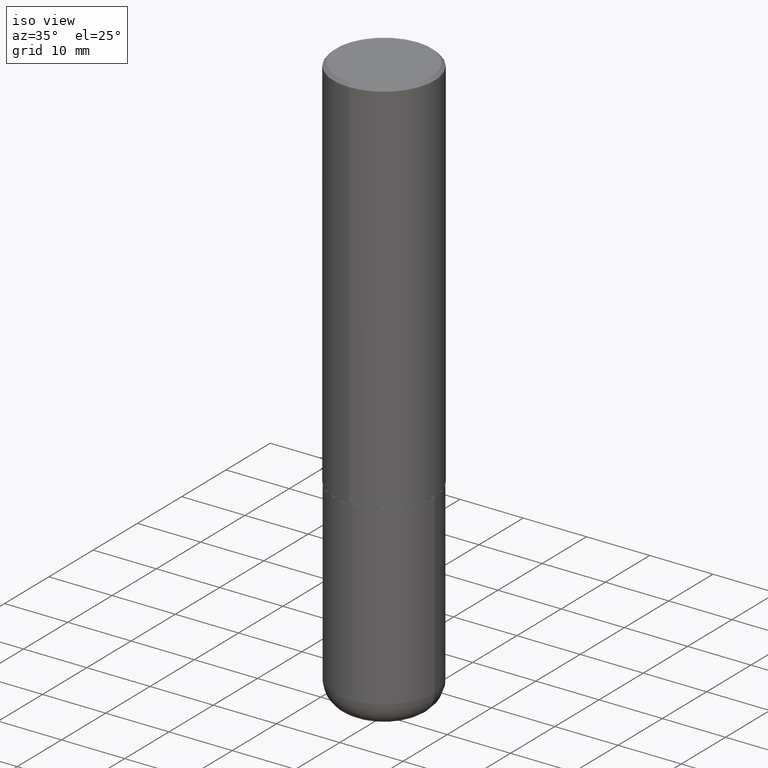
[diagram: clean part render]
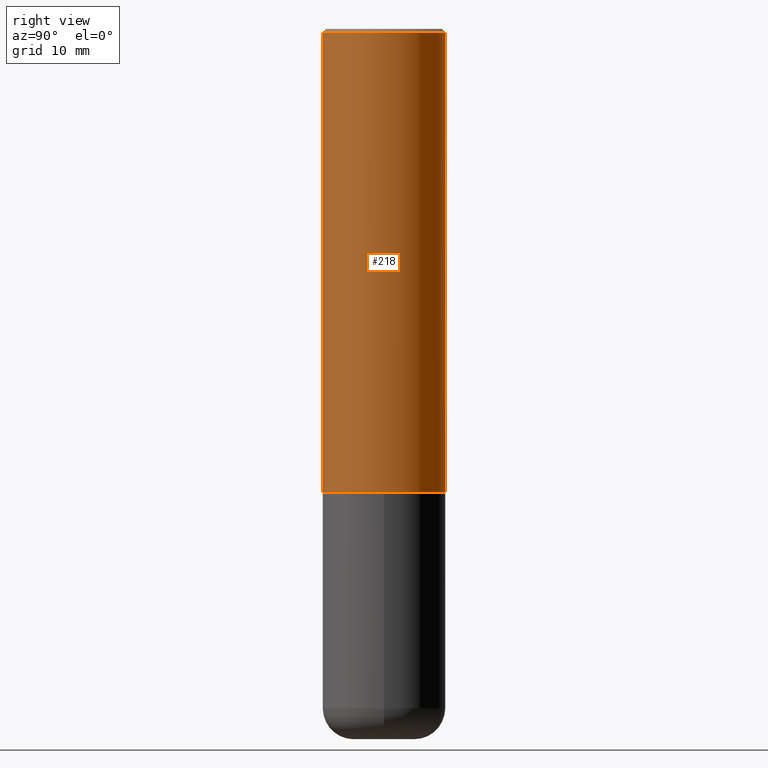
[diagram: tour spotlight — one face highlighted and labeled with its STEP entity id]
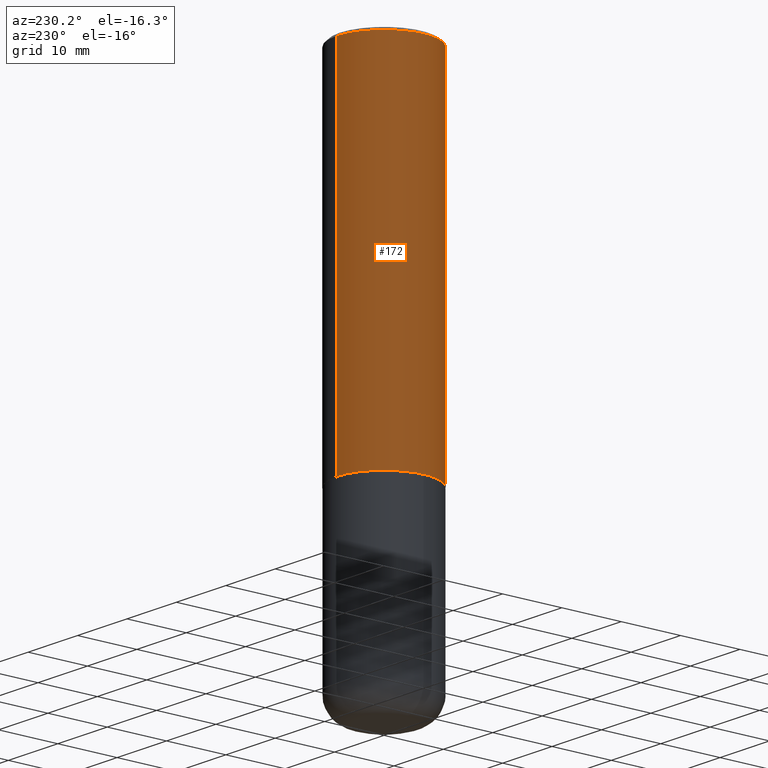
[diagram: tour spotlight — one face highlighted and labeled with its STEP entity id]
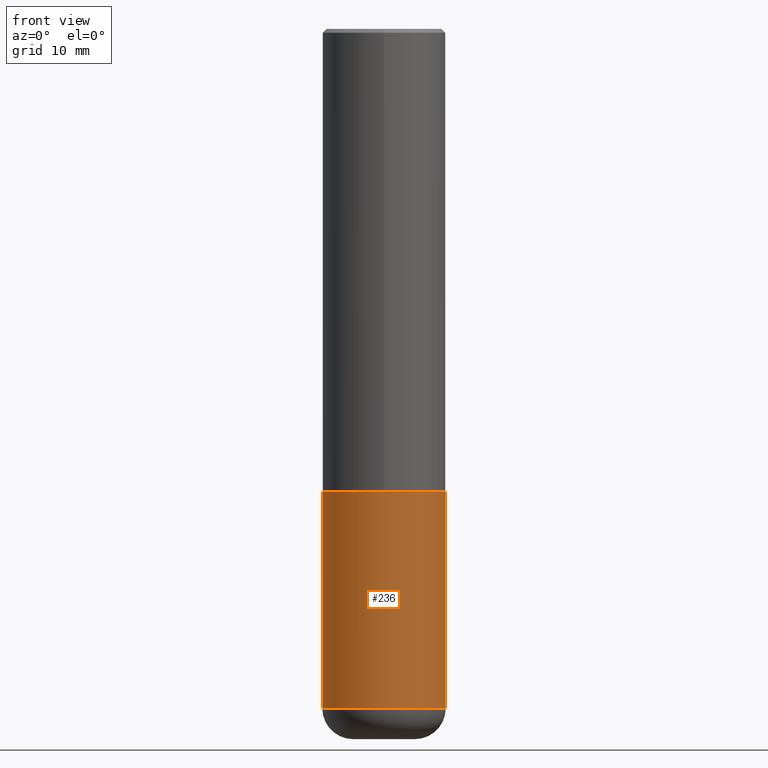
[diagram: tour spotlight — one face highlighted and labeled with its STEP entity id]
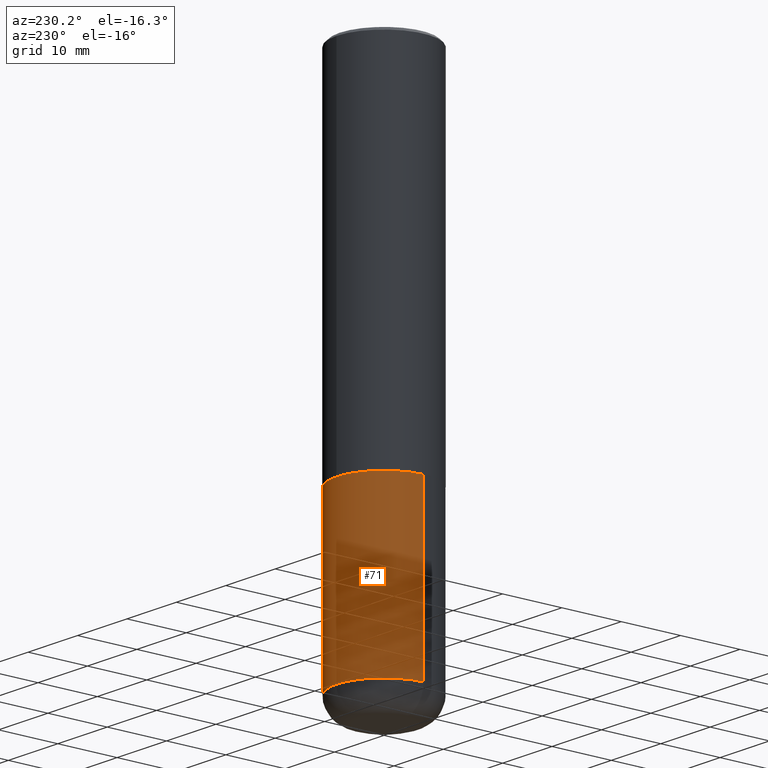
[diagram: tour spotlight — one face highlighted and labeled with its STEP entity id]
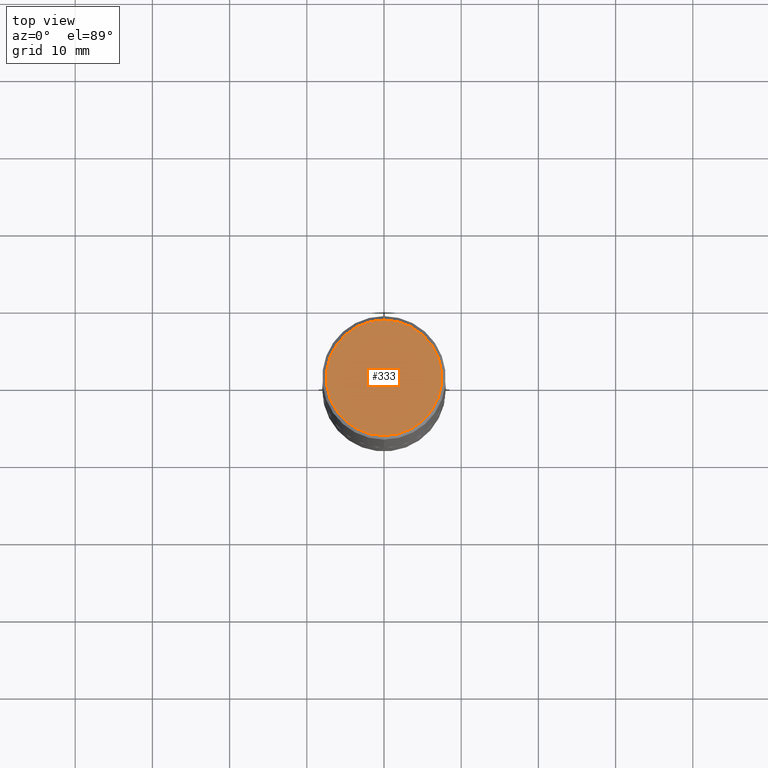
[diagram: tour spotlight — one face highlighted and labeled with its STEP entity id]
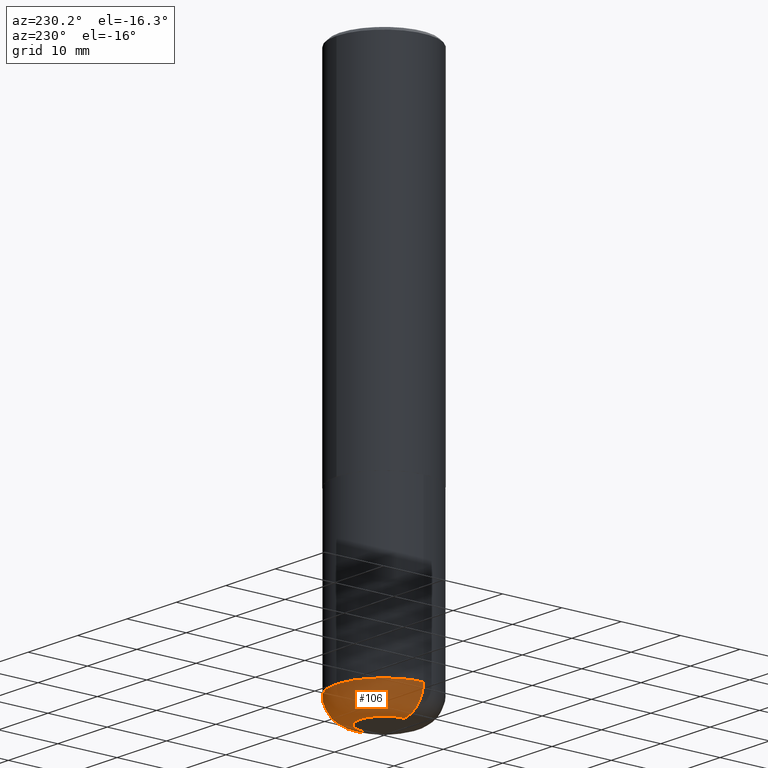
[diagram: tour spotlight — one face highlighted and labeled with its STEP entity id]
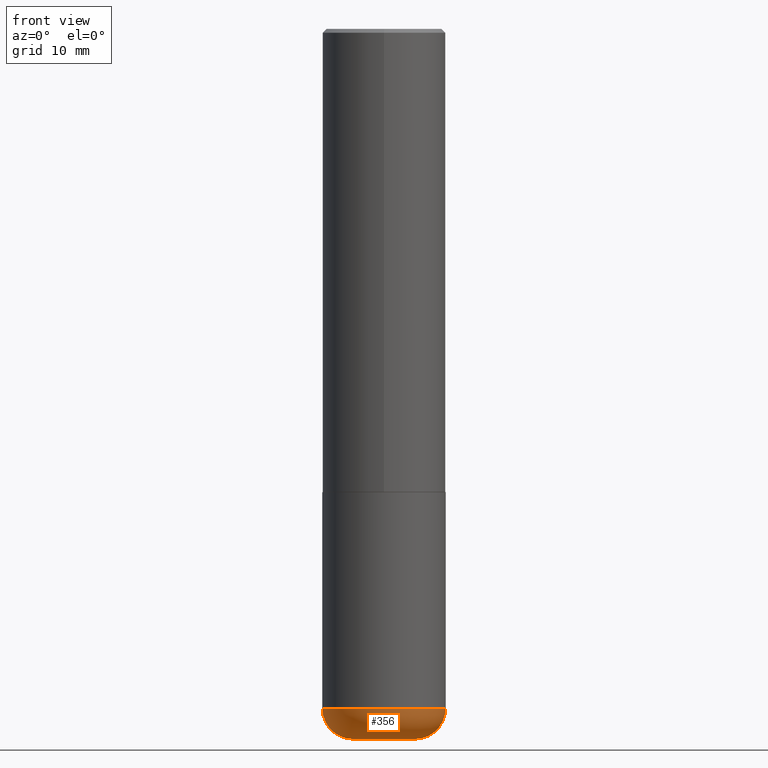
[diagram: tour spotlight — one face highlighted and labeled with its STEP entity id]
A machine part: a face-by-face anatomy tour. The part has 14 B-rep faces; the first image is the clean iso view, then the 7 largest visible faces are spotlighted one at a time (largest first), each with its STEP entity span.

Face 1 — right view, entity #218. In plain terms, the highlighted cylindrical surface (partial cylindrical patch) has radius 7.9997 mm, axis along (-0, 0, 1).
Definition (entity closure, byte-faithful):
#7 = LINE ( 'NONE', #360, #264 ) ;
#39 = CARTESIAN_POINT ( 'NONE',  ( 4.893464128848368385E-31, -6.979344562289319109E-17, -0.02000000000000006981 ) ) ;
#51 = VERTEX_POINT ( 'NONE', #380 ) ;
#52 = EDGE_CURVE ( 'NONE', #345, #81, #159, .T. ) ;
#61 = EDGE_CURVE ( 'NONE', #81, #200, #331, .T. ) ;
#64 = CARTESIAN_POINT ( 'NONE',  ( 0.000000000000000000, 0.000000000000000000, 0.000000000000000000 ) ) ;
#70 = DIRECTION ( 'NONE',  ( -6.982962677686265922E-15, -1.000000000000000000, 3.483117034309591132E-15 ) ) ;
#75 = DIRECTION ( 'NONE',  ( -2.446732064424175452E-29, 3.489672281144648363E-15, 1.000000000000000000 ) ) ;
#81 = VERTEX_POINT ( 'NONE', #291 ) ;
#98 = DIRECTION ( 'NONE',  ( -6.982962677686264344E-15, -1.000000000000000000, 3.489672281144647968E-15 ) ) ;
#115 = ORIENTED_EDGE ( 'NONE', *, *, #61, .F. ) ;
#119 = AXIS2_PLACEMENT_3D ( 'NONE', #39, #221, #70 ) ;
#149 = ORIENTED_EDGE ( 'NONE', *, *, #299, .T. ) ;
#159 = LINE ( 'NONE', #391, #365 ) ;
#166 = DIRECTION ( 'NONE',  ( -2.446732064424175452E-29, 3.489672281144647968E-15, 1.000000000000000000 ) ) ;
#196 = AXIS2_PLACEMENT_3D ( 'NONE', #64, #290, #98 ) ;
#199 = DIRECTION ( 'NONE',  ( -6.982962677686265922E-15, -1.000000000000000000, 3.469564049740290009E-15 ) ) ;
#200 = VERTEX_POINT ( 'NONE', #217 ) ;
#203 = CARTESIAN_POINT ( 'NONE',  ( 5.777223750518362448E-29, -8.239814190238740974E-15, -2.361199999999999743 ) ) ;
#217 = CARTESIAN_POINT ( 'NONE',  ( 2.199284095337289871E-15, 0.3149499999999999522, -0.02000000000000116615 ) ) ;
#218 = ADVANCED_FACE ( 'NONE', ( #349 ), #350, .T. ) ;
#221 = DIRECTION ( 'NONE',  ( -2.446732064424175452E-29, 3.489672281144647968E-15, 1.000000000000000000 ) ) ;
#223 = CARTESIAN_POINT ( 'NONE',  ( -2.199284095337233467E-15, -0.3149500000000085564, -2.361199999999998411 ) ) ;
#258 = DIRECTION ( 'NONE',  ( -2.446732064424175452E-29, 3.489672281144648363E-15, 1.000000000000000000 ) ) ;
#264 = VECTOR ( 'NONE', #75, 39.37007874015748143 ) ;
#290 = DIRECTION ( 'NONE',  ( -2.446732064424175452E-29, 3.489672281144647968E-15, 1.000000000000000000 ) ) ;
#291 = CARTESIAN_POINT ( 'NONE',  ( -2.160713844398143363E-15, -0.3149500000000000632, -0.01999999999999896999 ) ) ;
#298 = AXIS2_PLACEMENT_3D ( 'NONE', #203, #166, #199 ) ;
#299 = EDGE_CURVE ( 'NONE', #345, #51, #404, .T. ) ;
#331 = CIRCLE ( 'NONE', #119, 0.3149500000000000077 ) ;
#345 = VERTEX_POINT ( 'NONE', #223 ) ;
#349 = FACE_OUTER_BOUND ( 'NONE', #387, .T. ) ;
#350 = CYLINDRICAL_SURFACE ( 'NONE', #196, 0.3149500000000001743 ) ;
#354 = ORIENTED_EDGE ( 'NONE', *, *, #381, .T. ) ;
#360 = CARTESIAN_POINT ( 'NONE',  ( 2.237854346276435985E-15, 0.3149500000000001743, -1.099072284946507453E-15 ) ) ;
#365 = VECTOR ( 'NONE', #258, 39.37007874015748143 ) ;
#380 = CARTESIAN_POINT ( 'NONE',  ( 2.237854346276465567E-15, 0.3149499999999920141, -2.361200000000000632 ) ) ;
#381 = EDGE_CURVE ( 'NONE', #51, #200, #7, .T. ) ;
#387 = EDGE_LOOP ( 'NONE', ( #149, #354, #115, #411 ) ) ;
#391 = CARTESIAN_POINT ( 'NONE',  ( -2.199284095337290265E-15, -0.3149500000000001743, 1.099072284946507453E-15 ) ) ;
#404 = CIRCLE ( 'NONE', #298, 0.3149500000000002853 ) ;
#411 = ORIENTED_EDGE ( 'NONE', *, *, #52, .F. ) ;

Face 2 — auxiliary view, entity #172. In plain terms, the highlighted cylindrical surface (partial cylindrical patch) has radius 7.9997 mm, axis along (-0, 0, 1).
Definition (entity closure, byte-faithful):
#7 = LINE ( 'NONE', #360, #264 ) ;
#17 = DIRECTION ( 'NONE',  ( -6.982962677686265922E-15, -1.000000000000000000, 3.469564049740290009E-15 ) ) ;
#32 = DIRECTION ( 'NONE',  ( -6.982962677686264344E-15, -1.000000000000000000, 3.489672281144647968E-15 ) ) ;
#37 = EDGE_CURVE ( 'NONE', #51, #345, #66, .T. ) ;
#51 = VERTEX_POINT ( 'NONE', #380 ) ;
#52 = EDGE_CURVE ( 'NONE', #345, #81, #159, .T. ) ;
#62 = FACE_OUTER_BOUND ( 'NONE', #368, .T. ) ;
#66 = CIRCLE ( 'NONE', #305, 0.3149500000000002853 ) ;
#69 = ORIENTED_EDGE ( 'NONE', *, *, #381, .F. ) ;
#75 = DIRECTION ( 'NONE',  ( -2.446732064424175452E-29, 3.489672281144648363E-15, 1.000000000000000000 ) ) ;
#76 = DIRECTION ( 'NONE',  ( -6.982962677686265922E-15, -1.000000000000000000, 3.483117034309591132E-15 ) ) ;
#81 = VERTEX_POINT ( 'NONE', #291 ) ;
#133 = AXIS2_PLACEMENT_3D ( 'NONE', #316, #383, #32 ) ;
#137 = CIRCLE ( 'NONE', #340, 0.3149500000000000077 ) ;
#139 = DIRECTION ( 'NONE',  ( -2.446732064424175452E-29, 3.489672281144647968E-15, 1.000000000000000000 ) ) ;
#159 = LINE ( 'NONE', #391, #365 ) ;
#172 = ADVANCED_FACE ( 'NONE', ( #62 ), #190, .T. ) ;
#187 = ORIENTED_EDGE ( 'NONE', *, *, #245, .F. ) ;
#190 = CYLINDRICAL_SURFACE ( 'NONE', #133, 0.3149500000000001743 ) ;
#200 = VERTEX_POINT ( 'NONE', #217 ) ;
#210 = ORIENTED_EDGE ( 'NONE', *, *, #52, .T. ) ;
#217 = CARTESIAN_POINT ( 'NONE',  ( 2.199284095337289871E-15, 0.3149499999999999522, -0.02000000000000116615 ) ) ;
#223 = CARTESIAN_POINT ( 'NONE',  ( -2.199284095337233467E-15, -0.3149500000000085564, -2.361199999999998411 ) ) ;
#228 = ORIENTED_EDGE ( 'NONE', *, *, #37, .T. ) ;
#245 = EDGE_CURVE ( 'NONE', #200, #81, #137, .T. ) ;
#258 = DIRECTION ( 'NONE',  ( -2.446732064424175452E-29, 3.489672281144648363E-15, 1.000000000000000000 ) ) ;
#264 = VECTOR ( 'NONE', #75, 39.37007874015748143 ) ;
#291 = CARTESIAN_POINT ( 'NONE',  ( -2.160713844398143363E-15, -0.3149500000000000632, -0.01999999999999896999 ) ) ;
#304 = DIRECTION ( 'NONE',  ( -2.446732064424175452E-29, 3.489672281144647968E-15, 1.000000000000000000 ) ) ;
#305 = AXIS2_PLACEMENT_3D ( 'NONE', #312, #304, #17 ) ;
#312 = CARTESIAN_POINT ( 'NONE',  ( 5.777223750518362448E-29, -8.239814190238740974E-15, -2.361199999999999743 ) ) ;
#316 = CARTESIAN_POINT ( 'NONE',  ( 0.000000000000000000, 0.000000000000000000, 0.000000000000000000 ) ) ;
#327 = CARTESIAN_POINT ( 'NONE',  ( 4.893464128848368385E-31, -6.979344562289319109E-17, -0.02000000000000006981 ) ) ;
#340 = AXIS2_PLACEMENT_3D ( 'NONE', #327, #139, #76 ) ;
#345 = VERTEX_POINT ( 'NONE', #223 ) ;
#360 = CARTESIAN_POINT ( 'NONE',  ( 2.237854346276435985E-15, 0.3149500000000001743, -1.099072284946507453E-15 ) ) ;
#365 = VECTOR ( 'NONE', #258, 39.37007874015748143 ) ;
#368 = EDGE_LOOP ( 'NONE', ( #69, #228, #210, #187 ) ) ;
#380 = CARTESIAN_POINT ( 'NONE',  ( 2.237854346276465567E-15, 0.3149499999999920141, -2.361200000000000632 ) ) ;
#381 = EDGE_CURVE ( 'NONE', #51, #200, #7, .T. ) ;
#383 = DIRECTION ( 'NONE',  ( -2.446732064424175452E-29, 3.489672281144647968E-15, 1.000000000000000000 ) ) ;
#391 = CARTESIAN_POINT ( 'NONE',  ( -2.199284095337290265E-15, -0.3149500000000001743, 1.099072284946507453E-15 ) ) ;

Face 3 — front view, entity #236. In plain terms, the highlighted cylindrical surface (partial cylindrical patch) has radius 7.9997 mm, axis along (-0, 0, 1).
Definition (entity closure, byte-faithful):
#10 = CYLINDRICAL_SURFACE ( 'NONE', #314, 0.3149500000000000077 ) ;
#11 = VERTEX_POINT ( 'NONE', #57 ) ;
#41 = DIRECTION ( 'NONE',  ( -2.445468806185136597E-29, 3.491481338843145583E-15, 1.000000000000000000 ) ) ;
#49 = CARTESIAN_POINT ( 'NONE',  ( 0.3149500000000000077, -2.199284095337289871E-15, 1.535751875536930130E-29 ) ) ;
#57 = CARTESIAN_POINT ( 'NONE',  ( 0.3149500000000002298, -1.429552119375936694E-14, -3.464499999999999691 ) ) ;
#67 = AXIS2_PLACEMENT_3D ( 'NONE', #253, #96, #216 ) ;
#80 = DIRECTION ( 'NONE',  ( -2.445468806185136877E-29, 3.491481338843145188E-15, 1.000000000000000000 ) ) ;
#96 = DIRECTION ( 'NONE',  ( -2.445468806185136597E-29, 3.491481338843145583E-15, 1.000000000000000000 ) ) ;
#109 = CARTESIAN_POINT ( 'NONE',  ( -0.3149500000000002298, -9.858382752145641082E-15, -3.464499999999999691 ) ) ;
#120 = CARTESIAN_POINT ( 'NONE',  ( -0.3149500000000000077, -7.934052812242242362E-15, -2.362199999999999633 ) ) ;
#123 = CARTESIAN_POINT ( 'NONE',  ( 0.3149500000000000077, -1.044686131395256792E-14, -2.362199999999999633 ) ) ;
#134 = CARTESIAN_POINT ( 'NONE',  ( -0.3149500000000000077, 2.237854346276435590E-15, -1.549218606675782676E-29 ) ) ;
#135 = CARTESIAN_POINT ( 'NONE',  ( 0.000000000000000000, 0.000000000000000000, 0.000000000000000000 ) ) ;
#136 = CARTESIAN_POINT ( 'NONE',  ( 8.472326679028403758E-29, -1.209623709842207707E-14, -3.464499999999999691 ) ) ;
#138 = LINE ( 'NONE', #49, #292 ) ;
#145 = VERTEX_POINT ( 'NONE', #123 ) ;
#158 = ORIENTED_EDGE ( 'NONE', *, *, #324, .T. ) ;
#194 = DIRECTION ( 'NONE',  ( -2.445468806185136597E-29, 3.491481338843145583E-15, 1.000000000000000000 ) ) ;
#197 = EDGE_CURVE ( 'NONE', #413, #145, #259, .T. ) ;
#216 = DIRECTION ( 'NONE',  ( 1.000000000000000000, -6.982962677686266711E-15, 0.000000000000000000 ) ) ;
#222 = LINE ( 'NONE', #134, #366 ) ;
#234 = EDGE_LOOP ( 'NONE', ( #277, #254, #158, #281 ) ) ;
#236 = ADVANCED_FACE ( 'NONE', ( #319 ), #10, .T. ) ;
#252 = EDGE_CURVE ( 'NONE', #339, #413, #222, .T. ) ;
#253 = CARTESIAN_POINT ( 'NONE',  ( 5.776686413970529753E-29, -8.247577218615278049E-15, -2.362199999999999633 ) ) ;
#254 = ORIENTED_EDGE ( 'NONE', *, *, #318, .T. ) ;
#259 = CIRCLE ( 'NONE', #67, 0.3149500000000000077 ) ;
#265 = DIRECTION ( 'NONE',  ( -2.445468806185136877E-29, 3.491481338843145188E-15, 1.000000000000000000 ) ) ;
#270 = AXIS2_PLACEMENT_3D ( 'NONE', #136, #41, #332 ) ;
#277 = ORIENTED_EDGE ( 'NONE', *, *, #252, .F. ) ;
#281 = ORIENTED_EDGE ( 'NONE', *, *, #197, .F. ) ;
#292 = VECTOR ( 'NONE', #265, 39.37007874015748143 ) ;
#314 = AXIS2_PLACEMENT_3D ( 'NONE', #135, #194, #329 ) ;
#318 = EDGE_CURVE ( 'NONE', #339, #11, #347, .T. ) ;
#319 = FACE_OUTER_BOUND ( 'NONE', #234, .T. ) ;
#324 = EDGE_CURVE ( 'NONE', #11, #145, #138, .T. ) ;
#329 = DIRECTION ( 'NONE',  ( 1.000000000000000000, -6.982962677686266711E-15, 4.876176775795936353E-29 ) ) ;
#332 = DIRECTION ( 'NONE',  ( 1.000000000000000000, -6.982962677686263555E-15, 0.000000000000000000 ) ) ;
#339 = VERTEX_POINT ( 'NONE', #109 ) ;
#347 = CIRCLE ( 'NONE', #270, 0.3149500000000000077 ) ;
#366 = VECTOR ( 'NONE', #80, 39.37007874015748143 ) ;
#413 = VERTEX_POINT ( 'NONE', #120 ) ;

Face 4 — auxiliary view, entity #71. In plain terms, the highlighted cylindrical surface (partial cylindrical patch) has radius 7.9997 mm, axis along (-0, 0, 1).
Definition (entity closure, byte-faithful):
#11 = VERTEX_POINT ( 'NONE', #57 ) ;
#16 = CIRCLE ( 'NONE', #168, 0.3149500000000000077 ) ;
#40 = CARTESIAN_POINT ( 'NONE',  ( 0.000000000000000000, 0.000000000000000000, 0.000000000000000000 ) ) ;
#43 = DIRECTION ( 'NONE',  ( 1.000000000000000000, -6.982962677686266711E-15, 0.000000000000000000 ) ) ;
#49 = CARTESIAN_POINT ( 'NONE',  ( 0.3149500000000000077, -2.199284095337289871E-15, 1.535751875536930130E-29 ) ) ;
#57 = CARTESIAN_POINT ( 'NONE',  ( 0.3149500000000002298, -1.429552119375936694E-14, -3.464499999999999691 ) ) ;
#71 = ADVANCED_FACE ( 'NONE', ( #193 ), #130, .T. ) ;
#80 = DIRECTION ( 'NONE',  ( -2.445468806185136877E-29, 3.491481338843145188E-15, 1.000000000000000000 ) ) ;
#109 = CARTESIAN_POINT ( 'NONE',  ( -0.3149500000000002298, -9.858382752145641082E-15, -3.464499999999999691 ) ) ;
#120 = CARTESIAN_POINT ( 'NONE',  ( -0.3149500000000000077, -7.934052812242242362E-15, -2.362199999999999633 ) ) ;
#123 = CARTESIAN_POINT ( 'NONE',  ( 0.3149500000000000077, -1.044686131395256792E-14, -2.362199999999999633 ) ) ;
#125 = AXIS2_PLACEMENT_3D ( 'NONE', #40, #348, #293 ) ;
#130 = CYLINDRICAL_SURFACE ( 'NONE', #125, 0.3149500000000000077 ) ;
#134 = CARTESIAN_POINT ( 'NONE',  ( -0.3149500000000000077, 2.237854346276435590E-15, -1.549218606675782676E-29 ) ) ;
#138 = LINE ( 'NONE', #49, #292 ) ;
#145 = VERTEX_POINT ( 'NONE', #123 ) ;
#168 = AXIS2_PLACEMENT_3D ( 'NONE', #262, #393, #43 ) ;
#177 = CARTESIAN_POINT ( 'NONE',  ( 8.472326679028403758E-29, -1.209623709842207707E-14, -3.464499999999999691 ) ) ;
#182 = DIRECTION ( 'NONE',  ( 1.000000000000000000, -6.982962677686263555E-15, 0.000000000000000000 ) ) ;
#193 = FACE_OUTER_BOUND ( 'NONE', #212, .T. ) ;
#212 = EDGE_LOOP ( 'NONE', ( #346, #315, #401, #379 ) ) ;
#220 = AXIS2_PLACEMENT_3D ( 'NONE', #177, #274, #182 ) ;
#222 = LINE ( 'NONE', #134, #366 ) ;
#252 = EDGE_CURVE ( 'NONE', #339, #413, #222, .T. ) ;
#262 = CARTESIAN_POINT ( 'NONE',  ( 5.776686413970529753E-29, -8.247577218615278049E-15, -2.362199999999999633 ) ) ;
#265 = DIRECTION ( 'NONE',  ( -2.445468806185136877E-29, 3.491481338843145188E-15, 1.000000000000000000 ) ) ;
#274 = DIRECTION ( 'NONE',  ( -2.445468806185136597E-29, 3.491481338843145583E-15, 1.000000000000000000 ) ) ;
#292 = VECTOR ( 'NONE', #265, 39.37007874015748143 ) ;
#293 = DIRECTION ( 'NONE',  ( 1.000000000000000000, -6.982962677686266711E-15, 4.876176775795936353E-29 ) ) ;
#302 = EDGE_CURVE ( 'NONE', #145, #413, #16, .T. ) ;
#315 = ORIENTED_EDGE ( 'NONE', *, *, #252, .T. ) ;
#324 = EDGE_CURVE ( 'NONE', #11, #145, #138, .T. ) ;
#339 = VERTEX_POINT ( 'NONE', #109 ) ;
#346 = ORIENTED_EDGE ( 'NONE', *, *, #412, .T. ) ;
#348 = DIRECTION ( 'NONE',  ( -2.445468806185136597E-29, 3.491481338843145583E-15, 1.000000000000000000 ) ) ;
#359 = CIRCLE ( 'NONE', #220, 0.3149500000000000077 ) ;
#366 = VECTOR ( 'NONE', #80, 39.37007874015748143 ) ;
#379 = ORIENTED_EDGE ( 'NONE', *, *, #324, .F. ) ;
#393 = DIRECTION ( 'NONE',  ( -2.445468806185136597E-29, 3.491481338843145583E-15, 1.000000000000000000 ) ) ;
#401 = ORIENTED_EDGE ( 'NONE', *, *, #302, .F. ) ;
#412 = EDGE_CURVE ( 'NONE', #11, #339, #359, .T. ) ;
#413 = VERTEX_POINT ( 'NONE', #120 ) ;

Face 5 — top view, entity #333. In plain terms, the highlighted planar face has unit normal (0, -0, -1).
Definition (entity closure, byte-faithful):
#5 = CARTESIAN_POINT ( 'NONE',  ( -2.092108864420428426E-15, -0.2949500000000001565, 8.537362456613256939E-16 ) ) ;
#20 = DIRECTION ( 'NONE',  ( -2.446732064424175452E-29, 3.489672281144647968E-15, 1.000000000000000000 ) ) ;
#29 = DIRECTION ( 'NONE',  ( -6.982962677686265922E-15, -1.000000000000000000, 3.489672281144648363E-15 ) ) ;
#31 = EDGE_CURVE ( 'NONE', #241, #165, #238, .T. ) ;
#48 = EDGE_CURVE ( 'NONE', #165, #241, #99, .T. ) ;
#54 = CARTESIAN_POINT ( 'NONE',  ( 4.295056925857058757E-45, -6.125861232635271610E-31, -1.755425936622887402E-16 ) ) ;
#73 = AXIS2_PLACEMENT_3D ( 'NONE', #54, #206, #29 ) ;
#78 = FACE_OUTER_BOUND ( 'NONE', #174, .T. ) ;
#99 = CIRCLE ( 'NONE', #297, 0.2949500000000001565 ) ;
#100 = ORIENTED_EDGE ( 'NONE', *, *, #31, .T. ) ;
#107 = DIRECTION ( 'NONE',  ( 6.982962677686265922E-15, 1.000000000000000000, -3.489672281144648363E-15 ) ) ;
#161 = CARTESIAN_POINT ( 'NONE',  ( 2.129454468560427362E-15, 0.2949500000000001565, -1.204821432985903076E-15 ) ) ;
#165 = VERTEX_POINT ( 'NONE', #161 ) ;
#174 = EDGE_LOOP ( 'NONE', ( #321, #100 ) ) ;
#178 = CARTESIAN_POINT ( 'NONE',  ( 4.295056925857058757E-45, -6.125861232635271610E-31, -1.755425936622887402E-16 ) ) ;
#206 = DIRECTION ( 'NONE',  ( -2.446732064424175452E-29, 3.489672281144647968E-15, 1.000000000000000000 ) ) ;
#224 = AXIS2_PLACEMENT_3D ( 'NONE', #225, #267, #107 ) ;
#225 = CARTESIAN_POINT ( 'NONE',  ( 2.059624841783565247E-15, 0.2949500000000001565, -1.117050136154758706E-15 ) ) ;
#238 = CIRCLE ( 'NONE', #73, 0.2949500000000001565 ) ;
#241 = VERTEX_POINT ( 'NONE', #5 ) ;
#267 = DIRECTION ( 'NONE',  ( 2.446732064424174891E-29, -3.489672281144648363E-15, -1.000000000000000000 ) ) ;
#297 = AXIS2_PLACEMENT_3D ( 'NONE', #178, #20, #417 ) ;
#321 = ORIENTED_EDGE ( 'NONE', *, *, #48, .T. ) ;
#333 = ADVANCED_FACE ( 'NONE', ( #78 ), #400, .F. ) ;
#400 = PLANE ( 'NONE',  #224 ) ;
#417 = DIRECTION ( 'NONE',  ( -6.982962677686265922E-15, -1.000000000000000000, 3.489672281144648363E-15 ) ) ;

Face 6 — auxiliary view, entity #106. In plain terms, the highlighted toroidal blend (fillet) surface has major radius 3.9992 mm and minor (blend) radius 4.0005 mm.
Definition (entity closure, byte-faithful):
#2 = FACE_OUTER_BOUND ( 'NONE', #407, .T. ) ;
#6 = EDGE_CURVE ( 'NONE', #140, #56, #167, .T. ) ;
#11 = VERTEX_POINT ( 'NONE', #57 ) ;
#14 = ORIENTED_EDGE ( 'NONE', *, *, #6, .T. ) ;
#56 = VERTEX_POINT ( 'NONE', #384 ) ;
#57 = CARTESIAN_POINT ( 'NONE',  ( 0.3149500000000002298, -1.429552119375936694E-14, -3.464499999999999691 ) ) ;
#58 = CIRCLE ( 'NONE', #358, 0.1575000000000003897 ) ;
#65 = CARTESIAN_POINT ( 'NONE',  ( 0.1574500000000000621, -1.374561288289157675E-14, -3.622000000000000330 ) ) ;
#68 = CARTESIAN_POINT ( 'NONE',  ( 8.472326679028403758E-29, -1.209623709842207707E-14, -3.464499999999999691 ) ) ;
#72 = DIRECTION ( 'NONE',  ( 7.105427357601001859E-15, 1.000000000000000000, -3.491481338843145583E-15 ) ) ;
#101 = DIRECTION ( 'NONE',  ( -2.445468806185136597E-29, 3.491481338843145583E-15, 1.000000000000000000 ) ) ;
#106 = ADVANCED_FACE ( 'NONE', ( #2 ), #231, .T. ) ;
#109 = CARTESIAN_POINT ( 'NONE',  ( -0.3149500000000002298, -9.858382752145641082E-15, -3.464499999999999691 ) ) ;
#140 = VERTEX_POINT ( 'NONE', #65 ) ;
#148 = AXIS2_PLACEMENT_3D ( 'NONE', #68, #101, #157 ) ;
#155 = DIRECTION ( 'NONE',  ( 1.000000000000000000, -6.982962677686269077E-15, 0.000000000000000000 ) ) ;
#157 = DIRECTION ( 'NONE',  ( 1.000000000000000000, -6.982962677686266711E-15, 4.883557194083112901E-29 ) ) ;
#160 = EDGE_CURVE ( 'NONE', #140, #11, #58, .T. ) ;
#167 = CIRCLE ( 'NONE', #374, 0.1574500000000000621 ) ;
#176 = AXIS2_PLACEMENT_3D ( 'NONE', #357, #72, #294 ) ;
#177 = CARTESIAN_POINT ( 'NONE',  ( 8.472326679028403758E-29, -1.209623709842207707E-14, -3.464499999999999691 ) ) ;
#181 = ORIENTED_EDGE ( 'NONE', *, *, #412, .F. ) ;
#182 = DIRECTION ( 'NONE',  ( 1.000000000000000000, -6.982962677686263555E-15, 0.000000000000000000 ) ) ;
#192 = CARTESIAN_POINT ( 'NONE',  ( 0.1574500000000000066, -1.319570457202378025E-14, -3.464499999999999691 ) ) ;
#208 = DIRECTION ( 'NONE',  ( -2.445468806185136597E-29, 3.491481338843145583E-15, 1.000000000000000000 ) ) ;
#220 = AXIS2_PLACEMENT_3D ( 'NONE', #177, #274, #182 ) ;
#231 = TOROIDAL_SURFACE ( 'NONE', #148, 0.1574500000000000066, 0.1575000000000003619 ) ;
#248 = DIRECTION ( 'NONE',  ( -6.982962677686266711E-15, -1.000000000000000000, 3.491481338843145583E-15 ) ) ;
#268 = ORIENTED_EDGE ( 'NONE', *, *, #160, .F. ) ;
#274 = DIRECTION ( 'NONE',  ( -2.445468806185136597E-29, 3.491481338843145583E-15, 1.000000000000000000 ) ) ;
#284 = ORIENTED_EDGE ( 'NONE', *, *, #369, .T. ) ;
#294 = DIRECTION ( 'NONE',  ( -1.000000000000000000, 7.105427357601005014E-15, 0.000000000000000000 ) ) ;
#308 = DIRECTION ( 'NONE',  ( 1.000000000000000000, -6.982962677686263555E-15, 0.000000000000000000 ) ) ;
#339 = VERTEX_POINT ( 'NONE', #109 ) ;
#357 = CARTESIAN_POINT ( 'NONE',  ( -0.1574500000000000066, -1.097748756096779869E-14, -3.464499999999999691 ) ) ;
#358 = AXIS2_PLACEMENT_3D ( 'NONE', #192, #248, #155 ) ;
#359 = CIRCLE ( 'NONE', #220, 0.3149500000000000077 ) ;
#369 = EDGE_CURVE ( 'NONE', #56, #339, #410, .T. ) ;
#371 = CARTESIAN_POINT ( 'NONE',  ( 8.857488016002565597E-29, -1.264614540928987357E-14, -3.622000000000000330 ) ) ;
#374 = AXIS2_PLACEMENT_3D ( 'NONE', #371, #208, #308 ) ;
#384 = CARTESIAN_POINT ( 'NONE',  ( -0.1574500000000000621, -1.069288931199061971E-14, -3.622000000000000330 ) ) ;
#407 = EDGE_LOOP ( 'NONE', ( #14, #284, #181, #268 ) ) ;
#410 = CIRCLE ( 'NONE', #176, 0.1575000000000003897 ) ;
#412 = EDGE_CURVE ( 'NONE', #11, #339, #359, .T. ) ;

Face 7 — front view, entity #356. In plain terms, the highlighted toroidal blend (fillet) surface has major radius 3.9992 mm and minor (blend) radius 4.0005 mm.
Definition (entity closure, byte-faithful):
#9 = CARTESIAN_POINT ( 'NONE',  ( 8.857488016002565597E-29, -1.264614540928987357E-14, -3.622000000000000330 ) ) ;
#11 = VERTEX_POINT ( 'NONE', #57 ) ;
#41 = DIRECTION ( 'NONE',  ( -2.445468806185136597E-29, 3.491481338843145583E-15, 1.000000000000000000 ) ) ;
#53 = AXIS2_PLACEMENT_3D ( 'NONE', #9, #105, #364 ) ;
#56 = VERTEX_POINT ( 'NONE', #384 ) ;
#57 = CARTESIAN_POINT ( 'NONE',  ( 0.3149500000000002298, -1.429552119375936694E-14, -3.464499999999999691 ) ) ;
#58 = CIRCLE ( 'NONE', #358, 0.1575000000000003897 ) ;
#65 = CARTESIAN_POINT ( 'NONE',  ( 0.1574500000000000621, -1.374561288289157675E-14, -3.622000000000000330 ) ) ;
#72 = DIRECTION ( 'NONE',  ( 7.105427357601001859E-15, 1.000000000000000000, -3.491481338843145583E-15 ) ) ;
#74 = TOROIDAL_SURFACE ( 'NONE', #306, 0.1574500000000000066, 0.1575000000000003619 ) ;
#105 = DIRECTION ( 'NONE',  ( -2.445468806185136597E-29, 3.491481338843145583E-15, 1.000000000000000000 ) ) ;
#109 = CARTESIAN_POINT ( 'NONE',  ( -0.3149500000000002298, -9.858382752145641082E-15, -3.464499999999999691 ) ) ;
#121 = EDGE_LOOP ( 'NONE', ( #377, #275, #151, #363 ) ) ;
#136 = CARTESIAN_POINT ( 'NONE',  ( 8.472326679028403758E-29, -1.209623709842207707E-14, -3.464499999999999691 ) ) ;
#140 = VERTEX_POINT ( 'NONE', #65 ) ;
#151 = ORIENTED_EDGE ( 'NONE', *, *, #160, .T. ) ;
#155 = DIRECTION ( 'NONE',  ( 1.000000000000000000, -6.982962677686269077E-15, 0.000000000000000000 ) ) ;
#160 = EDGE_CURVE ( 'NONE', #140, #11, #58, .T. ) ;
#164 = DIRECTION ( 'NONE',  ( 1.000000000000000000, -6.982962677686266711E-15, 4.883557194083112901E-29 ) ) ;
#171 = CARTESIAN_POINT ( 'NONE',  ( 8.472326679028403758E-29, -1.209623709842207707E-14, -3.464499999999999691 ) ) ;
#176 = AXIS2_PLACEMENT_3D ( 'NONE', #357, #72, #294 ) ;
#186 = CIRCLE ( 'NONE', #53, 0.1574500000000000621 ) ;
#192 = CARTESIAN_POINT ( 'NONE',  ( 0.1574500000000000066, -1.319570457202378025E-14, -3.464499999999999691 ) ) ;
#201 = DIRECTION ( 'NONE',  ( -2.445468806185136597E-29, 3.491481338843145583E-15, 1.000000000000000000 ) ) ;
#248 = DIRECTION ( 'NONE',  ( -6.982962677686266711E-15, -1.000000000000000000, 3.491481338843145583E-15 ) ) ;
#270 = AXIS2_PLACEMENT_3D ( 'NONE', #136, #41, #332 ) ;
#275 = ORIENTED_EDGE ( 'NONE', *, *, #313, .T. ) ;
#294 = DIRECTION ( 'NONE',  ( -1.000000000000000000, 7.105427357601005014E-15, 0.000000000000000000 ) ) ;
#306 = AXIS2_PLACEMENT_3D ( 'NONE', #171, #201, #164 ) ;
#313 = EDGE_CURVE ( 'NONE', #56, #140, #186, .T. ) ;
#318 = EDGE_CURVE ( 'NONE', #339, #11, #347, .T. ) ;
#332 = DIRECTION ( 'NONE',  ( 1.000000000000000000, -6.982962677686263555E-15, 0.000000000000000000 ) ) ;
#339 = VERTEX_POINT ( 'NONE', #109 ) ;
#347 = CIRCLE ( 'NONE', #270, 0.3149500000000000077 ) ;
#356 = ADVANCED_FACE ( 'NONE', ( #392 ), #74, .T. ) ;
#357 = CARTESIAN_POINT ( 'NONE',  ( -0.1574500000000000066, -1.097748756096779869E-14, -3.464499999999999691 ) ) ;
#358 = AXIS2_PLACEMENT_3D ( 'NONE', #192, #248, #155 ) ;
#363 = ORIENTED_EDGE ( 'NONE', *, *, #318, .F. ) ;
#364 = DIRECTION ( 'NONE',  ( 1.000000000000000000, -6.982962677686263555E-15, 0.000000000000000000 ) ) ;
#369 = EDGE_CURVE ( 'NONE', #56, #339, #410, .T. ) ;
#377 = ORIENTED_EDGE ( 'NONE', *, *, #369, .F. ) ;
#384 = CARTESIAN_POINT ( 'NONE',  ( -0.1574500000000000621, -1.069288931199061971E-14, -3.622000000000000330 ) ) ;
#392 = FACE_OUTER_BOUND ( 'NONE', #121, .T. ) ;
#410 = CIRCLE ( 'NONE', #176, 0.1575000000000003897 ) ;